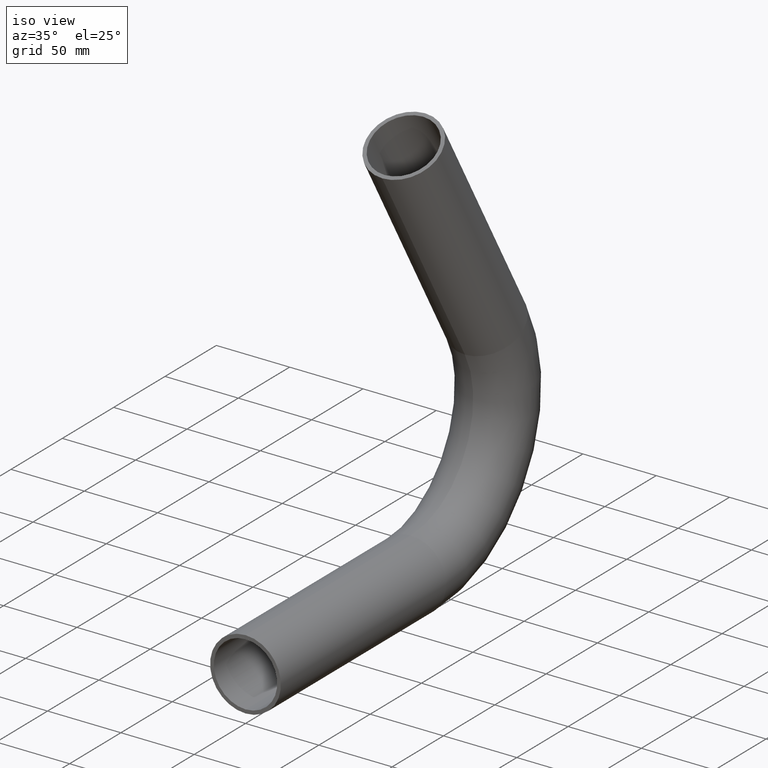
[diagram: clean part render]
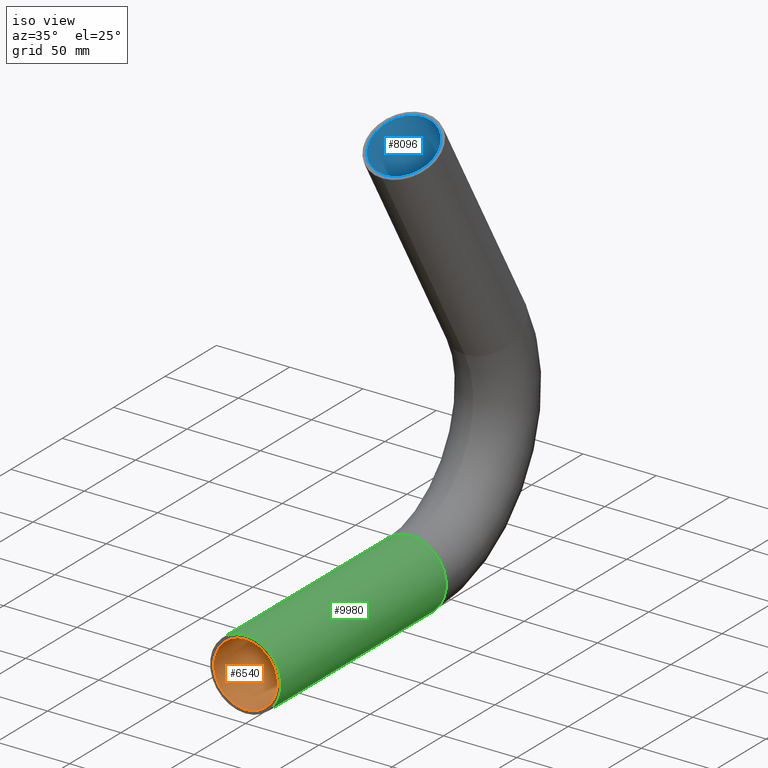
[diagram: same view with three faces highlighted in distinct colors, each labeled with its STEP entity id]
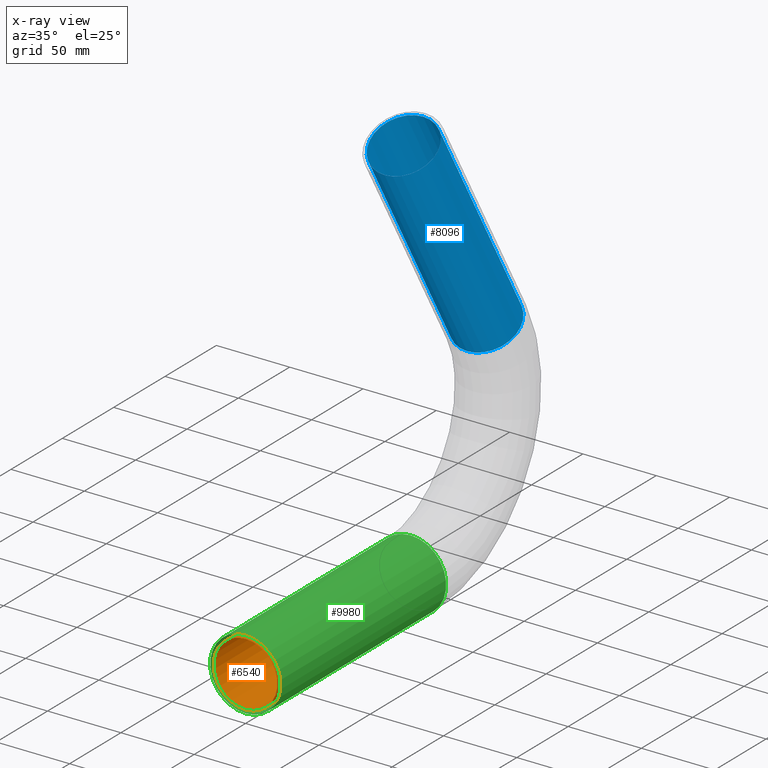
[diagram: x-ray of the same camera — body ghosted, the three highlighted faces saturated]
A machine part, iso view with three faces highlighted in distinct colors.
The next image is the same camera in x-ray (body ghosted, the three faces saturated) — at least one of them is partly hidden behind the body in this view.
Their STEP definitions:

[orange] entity #6540 — the highlighted cylindrical surface (bore or boss wall) has radius 21.65 mm, axis along (-0, -1, 0).
#346 = AXIS2_PLACEMENT_3D ( 'NONE', #10255, #1672, #11173 ) ;
#924 = DIRECTION ( 'NONE',  ( 0.000000000000000000, 1.000000000000000000, 0.000000000000000000 ) ) ;
#1152 = VERTEX_POINT ( 'NONE', #11391 ) ;
#1672 = DIRECTION ( 'NONE',  ( -0.000000000000000000, 1.000000000000000000, -0.000000000000000000 ) ) ;
#3226 = ORIENTED_EDGE ( 'NONE', *, *, #5434, .T. ) ;
#3384 = VERTEX_POINT ( 'NONE', #4830 ) ;
#3497 = CIRCLE ( 'NONE', #9486, 21.65000000000000568 ) ;
#3993 = CARTESIAN_POINT ( 'NONE',  ( 0.000000000000000000, 0.000000000000000000, 0.000000000000000000 ) ) ;
#4112 = EDGE_CURVE ( 'NONE', #3384, #3384, #3497, .T. ) ;
#4830 = CARTESIAN_POINT ( 'NONE',  ( 0.000000000000000000, 0.000000000000000000, 21.65000000000000568 ) ) ;
#5434 = EDGE_CURVE ( 'NONE', #1152, #1152, #11119, .T. ) ;
#5753 = DIRECTION ( 'NONE',  ( 0.000000000000000000, 0.000000000000000000, 1.000000000000000000 ) ) ;
#6540 = ADVANCED_FACE ( 'NONE', ( #7949, #11862 ), #9756, .F. ) ;
#6619 = DIRECTION ( 'NONE',  ( -0.000000000000000000, -1.000000000000000000, 4.636667203386017262E-31 ) ) ;
#6694 = AXIS2_PLACEMENT_3D ( 'NONE', #10436, #6619, #6709 ) ;
#6709 = DIRECTION ( 'NONE',  ( 0.000000000000000000, 0.000000000000000000, -1.000000000000000000 ) ) ;
#7949 = FACE_OUTER_BOUND ( 'NONE', #8876, .T. ) ;
#8748 = ORIENTED_EDGE ( 'NONE', *, *, #4112, .F. ) ;
#8876 = EDGE_LOOP ( 'NONE', ( #3226 ) ) ;
#8957 = EDGE_LOOP ( 'NONE', ( #8748 ) ) ;
#9486 = AXIS2_PLACEMENT_3D ( 'NONE', #3993, #924, #5753 ) ;
#9756 = CYLINDRICAL_SURFACE ( 'NONE', #6694, 21.65000000000000568 ) ;
#10255 = CARTESIAN_POINT ( 'NONE',  ( 0.000000000000000000, 160.9882081482890328, 0.000000000000000000 ) ) ;
#10436 = CARTESIAN_POINT ( 'NONE',  ( 0.000000000000000000, 160.9882081482890328, -7.464487448530533640E-29 ) ) ;
#11119 = CIRCLE ( 'NONE', #346, 21.65000000000000568 ) ;
#11173 = DIRECTION ( 'NONE',  ( 0.000000000000000000, 0.000000000000000000, -1.000000000000000000 ) ) ;
#11391 = CARTESIAN_POINT ( 'NONE',  ( 0.000000000000000000, 160.9882081482890328, -21.65000000000000568 ) ) ;
#11862 = FACE_OUTER_BOUND ( 'NONE', #8957, .T. ) ;

[blue] entity #8096 — the highlighted cylindrical surface (bore or boss wall) has radius 21.65 mm, axis along (0, -0.5, 0.866).
#507 = EDGE_LOOP ( 'NONE', ( #10914 ) ) ;
#1707 = FACE_OUTER_BOUND ( 'NONE', #507, .T. ) ;
#1897 = AXIS2_PLACEMENT_3D ( 'NONE', #10462, #9550, #12369 ) ;
#2788 = EDGE_LOOP ( 'NONE', ( #7250 ) ) ;
#3312 = DIRECTION ( 'NONE',  ( 0.000000000000000000, -0.8660254037844365982, -0.5000000000000035527 ) ) ;
#3433 = DIRECTION ( 'NONE',  ( 0.000000000000000000, -0.5000000000000041078, 0.8660254037844363761 ) ) ;
#4883 = CYLINDRICAL_SURFACE ( 'NONE', #9911, 21.65000000000001634 ) ;
#5735 = CIRCLE ( 'NONE', #1897, 21.65000000000001634 ) ;
#5805 = EDGE_CURVE ( 'NONE', #9402, #9402, #5735, .T. ) ;
#6266 = CARTESIAN_POINT ( 'NONE',  ( 0.000000000000000000, 234.6003674699661588, 127.5000000000003411 ) ) ;
#7130 = AXIS2_PLACEMENT_3D ( 'NONE', #12042, #3433, #3312 ) ;
#7231 = DIRECTION ( 'NONE',  ( 0.000000000000000000, -0.8660254037844365982, -0.5000000000000035527 ) ) ;
#7250 = ORIENTED_EDGE ( 'NONE', *, *, #5805, .T. ) ;
#7631 = CARTESIAN_POINT ( 'NONE',  ( 0.000000000000000000, 215.8509174780330966, 116.6750000000002530 ) ) ;
#7863 = FACE_OUTER_BOUND ( 'NONE', #2788, .T. ) ;
#8096 = ADVANCED_FACE ( 'NONE', ( #1707, #7863 ), #4883, .F. ) ;
#8277 = DIRECTION ( 'NONE',  ( 0.000000000000000000, -0.5000000000000041078, 0.8660254037844363761 ) ) ;
#8635 = CARTESIAN_POINT ( 'NONE',  ( 0.000000000000000000, 135.3568134038879123, 256.0948779661551384 ) ) ;
#8791 = VERTEX_POINT ( 'NONE', #7631 ) ;
#9402 = VERTEX_POINT ( 'NONE', #8635 ) ;
#9550 = DIRECTION ( 'NONE',  ( 0.000000000000000000, -0.5000000000000041078, 0.8660254037844364872 ) ) ;
#9911 = AXIS2_PLACEMENT_3D ( 'NONE', #6266, #8277, #7231 ) ;
#10462 = CARTESIAN_POINT ( 'NONE',  ( 0.000000000000000000, 154.1062633958209744, 266.9198779661552408 ) ) ;
#10914 = ORIENTED_EDGE ( 'NONE', *, *, #11761, .F. ) ;
#11761 = EDGE_CURVE ( 'NONE', #8791, #8791, #12435, .T. ) ;
#12042 = CARTESIAN_POINT ( 'NONE',  ( 0.000000000000000000, 234.6003674699661588, 127.5000000000003411 ) ) ;
#12369 = DIRECTION ( 'NONE',  ( 0.000000000000000000, -0.8660254037844365982, -0.5000000000000035527 ) ) ;
#12435 = CIRCLE ( 'NONE', #7130, 21.65000000000001634 ) ;

[green] entity #9980 — the highlighted cylindrical surface (bore or boss wall) has radius 24.15 mm, axis along (-0, -1, 0).
#911 = CARTESIAN_POINT ( 'NONE',  ( 0.000000000000000000, 160.9882081482890328, 24.15000000000000568 ) ) ;
#1234 = AXIS2_PLACEMENT_3D ( 'NONE', #10875, #3334, #6112 ) ;
#1443 = VERTEX_POINT ( 'NONE', #911 ) ;
#1749 = AXIS2_PLACEMENT_3D ( 'NONE', #8988, #6116, #6268 ) ;
#2126 = CARTESIAN_POINT ( 'NONE',  ( 0.000000000000000000, 160.9882081482890328, -7.464487448530533640E-29 ) ) ;
#2543 = ORIENTED_EDGE ( 'NONE', *, *, #11417, .T. ) ;
#2960 = VERTEX_POINT ( 'NONE', #5782 ) ;
#3086 = DIRECTION ( 'NONE',  ( 0.000000000000000000, 0.000000000000000000, -1.000000000000000000 ) ) ;
#3167 = CIRCLE ( 'NONE', #1749, 24.15000000000000568 ) ;
#3334 = DIRECTION ( 'NONE',  ( 0.000000000000000000, 1.000000000000000000, 0.000000000000000000 ) ) ;
#3354 = EDGE_LOOP ( 'NONE', ( #2543 ) ) ;
#3667 = ORIENTED_EDGE ( 'NONE', *, *, #5626, .F. ) ;
#4080 = AXIS2_PLACEMENT_3D ( 'NONE', #2126, #8781, #3086 ) ;
#4201 = EDGE_LOOP ( 'NONE', ( #3667 ) ) ;
#5626 = EDGE_CURVE ( 'NONE', #1443, #1443, #9004, .T. ) ;
#5782 = CARTESIAN_POINT ( 'NONE',  ( 0.000000000000000000, 0.000000000000000000, 24.15000000000000568 ) ) ;
#6112 = DIRECTION ( 'NONE',  ( 0.000000000000000000, 0.000000000000000000, 1.000000000000000000 ) ) ;
#6116 = DIRECTION ( 'NONE',  ( 0.000000000000000000, 1.000000000000000000, 0.000000000000000000 ) ) ;
#6268 = DIRECTION ( 'NONE',  ( 0.000000000000000000, 0.000000000000000000, 1.000000000000000000 ) ) ;
#8712 = FACE_OUTER_BOUND ( 'NONE', #3354, .T. ) ;
#8781 = DIRECTION ( 'NONE',  ( -0.000000000000000000, -1.000000000000000000, 4.636667203386017262E-31 ) ) ;
#8988 = CARTESIAN_POINT ( 'NONE',  ( 0.000000000000000000, 0.000000000000000000, 0.000000000000000000 ) ) ;
#9001 = CYLINDRICAL_SURFACE ( 'NONE', #4080, 24.15000000000000568 ) ;
#9004 = CIRCLE ( 'NONE', #1234, 24.15000000000000568 ) ;
#9627 = FACE_OUTER_BOUND ( 'NONE', #4201, .T. ) ;
#9980 = ADVANCED_FACE ( 'NONE', ( #9627, #8712 ), #9001, .T. ) ;
#10875 = CARTESIAN_POINT ( 'NONE',  ( 0.000000000000000000, 160.9882081482890328, -7.464487448530533640E-29 ) ) ;
#11417 = EDGE_CURVE ( 'NONE', #2960, #2960, #3167, .T. ) ;